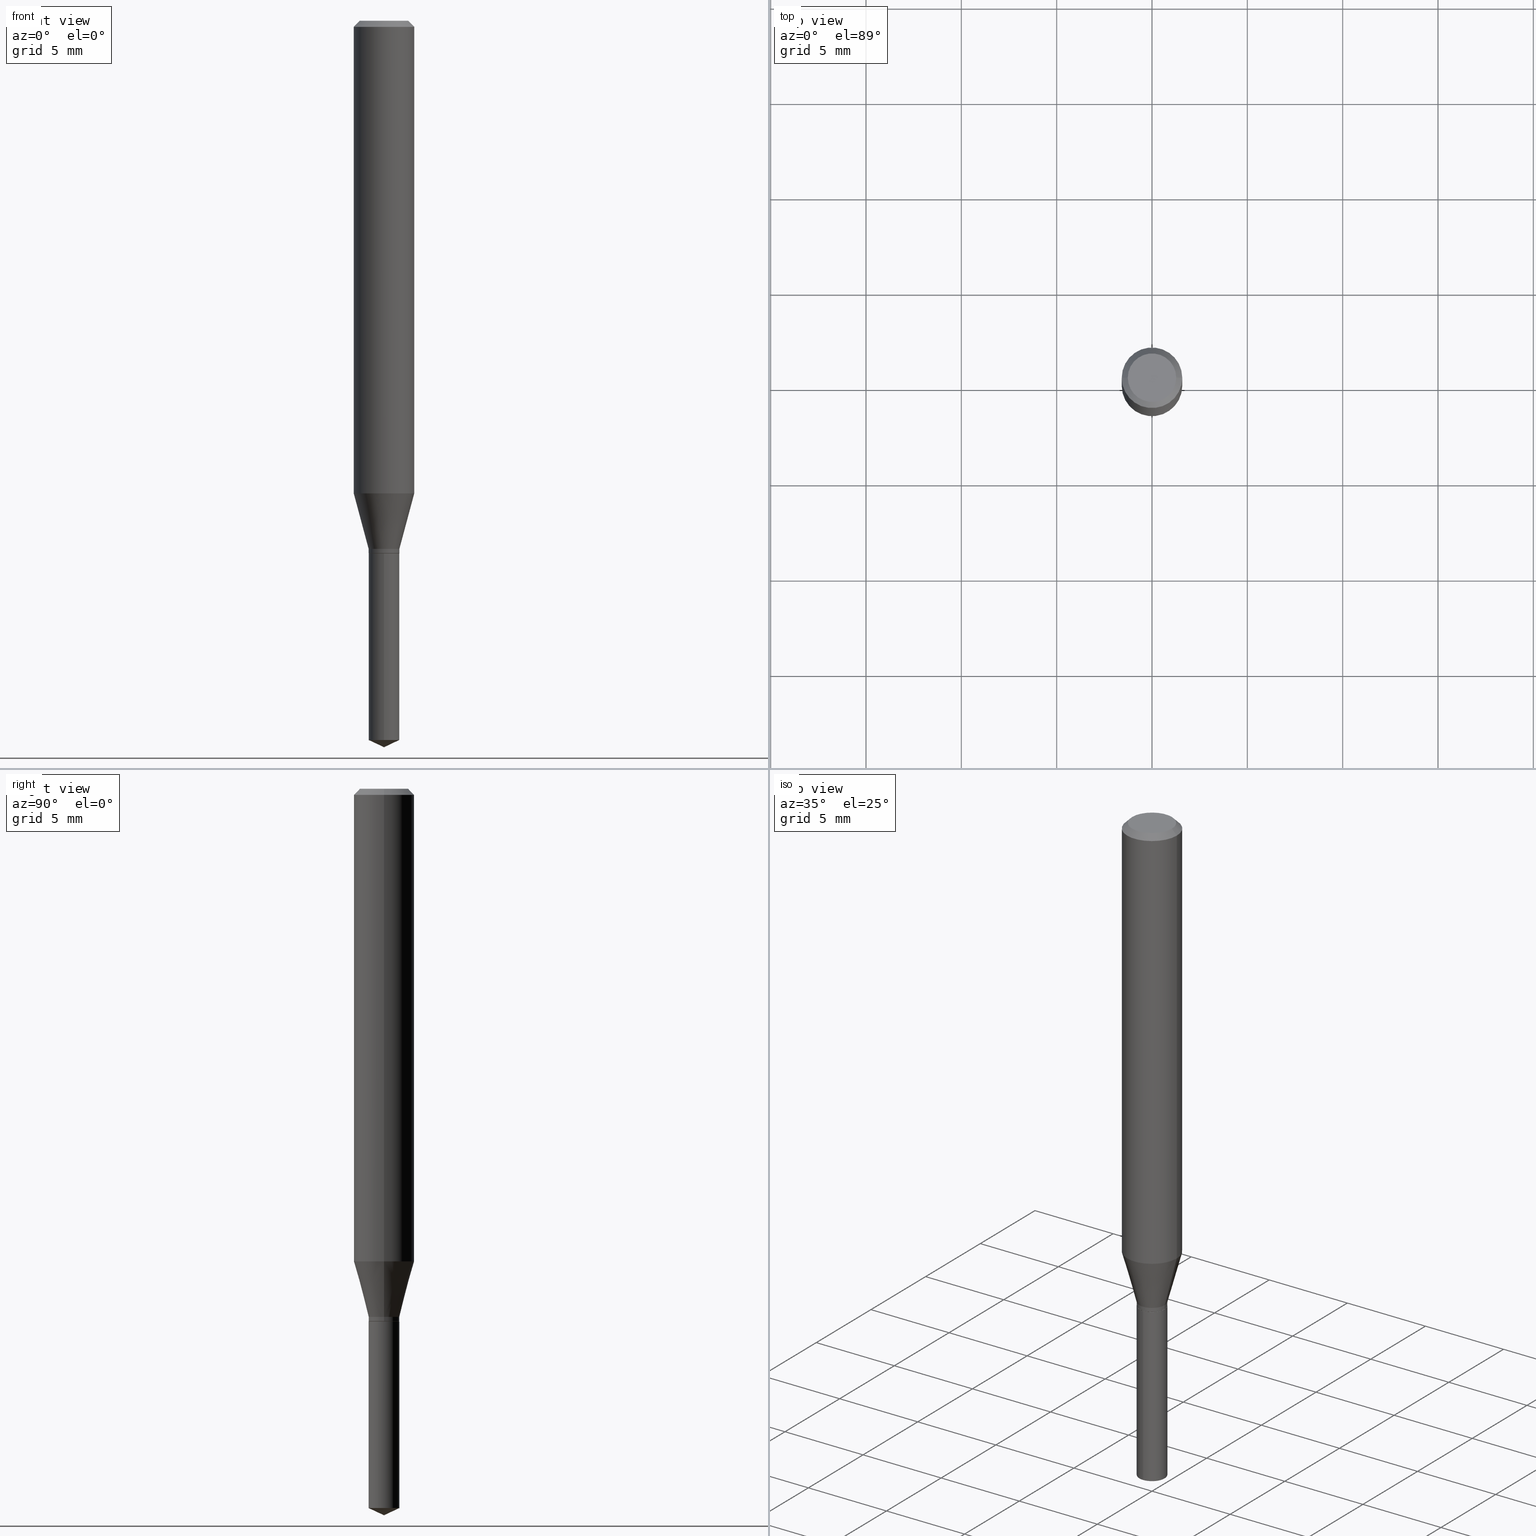
[diagram: canonical four-view strip — front | top / right | iso, engineering-drawing reading convention]
A machine part, canonical four-view strip (front | top / right | iso — engineering-drawing reading convention). The complete STEP part file that produces these views, byte-faithful:
ISO-10303-21;
HEADER;
FILE_DESCRIPTION (( 'STEP AP203' ),
    '1' );
FILE_NAME ('07343.STEP',
    '2024-04-23T20:35:52',
    ( '' ),
    ( '' ),
    'SwSTEP 2.0',
    'SolidWorks 2023',
    '' );
FILE_SCHEMA (( 'CONFIG_CONTROL_DESIGN' ));
ENDSEC;

DATA;
#1 = CARTESIAN_POINT ( 'NONE',  ( 2.666783733144892185E-29, -3.807460400008450745E-15, -1.090500000000000247 ) ) ;
#2 = AXIS2_PLACEMENT_3D ( 'NONE', #113, #224, #79 ) ;
#3 = ADVANCED_FACE ( 'NONE', ( #139 ), #90, .T. ) ;
#4 = PLANE ( 'NONE',  #352 ) ;
#5 = EDGE_CURVE ( 'NONE', #490, #102, #42, .T. ) ;
#6 = CIRCLE ( 'NONE', #284, 0.03175000000000000044 ) ;
#7 = VECTOR ( 'NONE', #11, 39.37007874015748854 ) ;
#8 = DIRECTION ( 'NONE',  ( -2.445399690415121810E-29, 3.491580316559632610E-15, 1.000000000000000000 ) ) ;
#9 = LOCAL_TIME ( 16, 35, 52.00000000000000000, #86 ) ;
#10 = CC_DESIGN_DATE_AND_TIME_ASSIGNMENT ( #408, #298, ( #413 ) ) ;
#11 = DIRECTION ( 'NONE',  ( -0.7071067811865232589, 7.493145998870265808E-15, 0.7071067811865715536 ) ) ;
#12 = ORIENTED_EDGE ( 'NONE', *, *, #156, .T. ) ;
#13 =( LENGTH_UNIT ( ) NAMED_UNIT ( * ) SI_UNIT ( $, .METRE. ) );
#14 = EDGE_LOOP ( 'NONE', ( #49, #384, #242, #141 ) ) ;
#15 = EDGE_CURVE ( 'NONE', #95, #51, #332, .T. ) ;
#16 = EDGE_LOOP ( 'NONE', ( #45, #245 ) ) ;
#17 = ORIENTED_EDGE ( 'NONE', *, *, #320, .T. ) ;
#18 = EDGE_CURVE ( 'NONE', #63, #386, #438, .T. ) ;
#19 = CLOSED_SHELL ( 'NONE', ( #59, #64, #216, #21, #210 ) ) ;
#20 = ORIENTED_EDGE ( 'NONE', *, *, #410, .T. ) ;
#21 = ADVANCED_FACE ( 'NONE', ( #297 ), #323, .T. ) ;
#22 = DIRECTION ( 'NONE',  ( -2.445468806185136597E-29, 3.491481338843145583E-15, 1.000000000000000000 ) ) ;
#23 = CARTESIAN_POINT ( 'NONE',  ( 3.668252923656895710E-29, -5.237152723863177100E-15, -1.500000000000000222 ) ) ;
#24 = AXIS2_PLACEMENT_3D ( 'NONE', #275, #178, #364 ) ;
#25 = LOCAL_TIME ( 16, 35, 52.00000000000000000, #31 ) ;
#26 = CARTESIAN_POINT ( 'NONE',  ( 0.03125000000000000000, -4.058847056405155936E-15, -1.100000000000000089 ) ) ;
#27 = CYLINDRICAL_SURFACE ( 'NONE', #166, 0.06250000000000005551 ) ;
#28 = ADVANCED_FACE ( 'NONE', ( #478 ), #269, .T. ) ;
#29 = CARTESIAN_POINT ( 'NONE',  ( -0.03175000000000000044, -3.597574747429412859E-15, -1.099499999999999922 ) ) ;
#30 = DIRECTION ( 'NONE',  ( -2.445468806185136597E-29, 3.491481338843145583E-15, 1.000000000000000000 ) ) ;
#31 = COORDINATED_UNIVERSAL_TIME_OFFSET ( 5, 0, .BEHIND. ) ;
#32 = EDGE_CURVE ( 'NONE', #286, #319, #111, .T. ) ;
#33 = CARTESIAN_POINT ( 'NONE',  ( 2.690015686803650369E-29, -3.840629472727460101E-15, -1.100000000000000089 ) ) ;
#34 = CIRCLE ( 'NONE', #313, 0.03175000000000000044 ) ;
#35 = CARTESIAN_POINT ( 'NONE',  ( 0.000000000000000000, 0.000000000000000000, 0.000000000000000000 ) ) ;
#36 = DIMENSIONAL_EXPONENTS ( 1.000000000000000000, 0.000000000000000000, 0.000000000000000000, 0.000000000000000000, 0.000000000000000000, 0.000000000000000000, 0.000000000000000000 ) ;
#37 = CC_DESIGN_APPROVAL ( #424, ( #371 ) ) ;
#38 = CARTESIAN_POINT ( 'NONE',  ( -0.03175000000000000044, -3.581863081404619327E-15, -1.090500000000000247 ) ) ;
#39 = SECURITY_CLASSIFICATION_LEVEL ( 'unclassified' ) ;
#40 = LINE ( 'NONE', #416, #232 ) ;
#41 = EDGE_LOOP ( 'NONE', ( #432, #172, #243 ) ) ;
#42 = CIRCLE ( 'NONE', #70, 0.03125000000000000000 ) ;
#43 = PERSON_AND_ORGANIZATION ( #468, #340 ) ;
#44 = LINE ( 'NONE', #268, #149 ) ;
#45 = ORIENTED_EDGE ( 'NONE', *, *, #5, .F. ) ;
#46 = AXIS2_PLACEMENT_3D ( 'NONE', #418, #303, #195 ) ;
#47 = CC_DESIGN_SECURITY_CLASSIFICATION ( #399, ( #371 ) ) ;
#48 = CARTESIAN_POINT ( 'NONE',  ( 3.056836007731442729E-31, -4.364351673553962300E-17, -0.01250000000000008916 ) ) ;
#49 = ORIENTED_EDGE ( 'NONE', *, *, #396, .F. ) ;
#50 = DIRECTION ( 'NONE',  ( 1.000000000000000000, -6.982962677686264344E-15, 0.000000000000000000 ) ) ;
#51 = VERTEX_POINT ( 'NONE', #405 ) ;
#52 = FACE_OUTER_BOUND ( 'NONE', #431, .T. ) ;
#53 =( GEOMETRIC_REPRESENTATION_CONTEXT ( 3 ) GLOBAL_UNCERTAINTY_ASSIGNED_CONTEXT ( ( #138 ) ) GLOBAL_UNIT_ASSIGNED_CONTEXT ( ( #389, #328, #446 ) ) REPRESENTATION_CONTEXT ( 'NONE', 'WORKASPACE' ) );
#54 = LOCAL_TIME ( 16, 35, 52.00000000000000000, #331 ) ;
#55 = CARTESIAN_POINT ( 'NONE',  ( 0.03175000000000000044, -4.029169465024989587E-15, -1.090500000000000247 ) ) ;
#56 = ORIENTED_EDGE ( 'NONE', *, *, #363, .T. ) ;
#57 = DIRECTION ( 'NONE',  ( 1.000000000000000000, -6.982962677686264344E-15, 0.000000000000000000 ) ) ;
#58 = ORIENTED_EDGE ( 'NONE', *, *, #410, .F. ) ;
#59 = ADVANCED_FACE ( 'NONE', ( #143 ), #482, .T. ) ;
#60 = VECTOR ( 'NONE', #477, 39.37007874015748143 ) ;
#61 = EDGE_LOOP ( 'NONE', ( #301, #104, #426, #337 ) ) ;
#62 = CIRCLE ( 'NONE', #398, 0.03175000000000000044 ) ;
#63 = VERTEX_POINT ( 'NONE', #155 ) ;
#64 = ADVANCED_FACE ( 'NONE', ( #76 ), #470, .T. ) ;
#65 = ADVANCED_FACE ( 'NONE', ( #447 ), #27, .T. ) ;
#66 = ORIENTED_EDGE ( 'NONE', *, *, #317, .F. ) ;
#67 = CARTESIAN_POINT ( 'NONE',  ( 2.666783733144892185E-29, -3.807460400008450745E-15, -1.090500000000000247 ) ) ;
#68 = ADVANCED_FACE ( 'NONE', ( #148 ), #215, .T. ) ;
#69 = DIRECTION ( 'NONE',  ( -2.445399690415121530E-29, 3.491580316559632610E-15, 1.000000000000000000 ) ) ;
#70 = AXIS2_PLACEMENT_3D ( 'NONE', #288, #260, #325 ) ;
#71 = CARTESIAN_POINT ( 'NONE',  ( 0.03175000000000000044, -4.029169465024989587E-15, -1.090500000000000247 ) ) ;
#72 = DIRECTION ( 'NONE',  ( -6.982962677686265922E-15, -1.000000000000000000, 4.302122824668131015E-15 ) ) ;
#73 = VECTOR ( 'NONE', #217, 39.37007874015748854 ) ;
#74 = LOCAL_TIME ( 16, 35, 52.00000000000000000, #486 ) ;
#75 = FACE_OUTER_BOUND ( 'NONE', #274, .T. ) ;
#76 = FACE_OUTER_BOUND ( 'NONE', #109, .T. ) ;
#77 = CC_DESIGN_PERSON_AND_ORGANIZATION_ASSIGNMENT ( #120, #265, ( #399 ) ) ;
#78 = PERSON_AND_ORGANIZATION_ROLE ( 'creator' ) ;
#79 = DIRECTION ( 'NONE',  ( 1.000000000000000000, -6.982962677686266711E-15, 4.876176775795936353E-29 ) ) ;
#80 = AXIS2_PLACEMENT_3D ( 'NONE', #257, #442, #407 ) ;
#81 = PERSON_AND_ORGANIZATION ( #468, #340 ) ;
#82 = DIRECTION ( 'NONE',  ( -6.982962677686265922E-15, -1.000000000000000000, 4.302122824668131015E-15 ) ) ;
#83 = VECTOR ( 'NONE', #110, 39.37007874015748143 ) ;
#84 = APPROVAL_STATUS ( 'not_yet_approved' ) ;
#85 = FACE_OUTER_BOUND ( 'NONE', #41, .T. ) ;
#86 = COORDINATED_UNIVERSAL_TIME_OFFSET ( 5, 0, .BEHIND. ) ;
#87 = FACE_OUTER_BOUND ( 'NONE', #212, .T. ) ;
#88 = VECTOR ( 'NONE', #411, 39.37007874015748143 ) ;
#89 = APPROVAL_DATE_TIME ( #366, #333 ) ;
#90 = CONICAL_SURFACE ( 'NONE', #290, 0.03125000000000000000, 0.7853981633974141952 ) ;
#91 = DIRECTION ( 'NONE',  ( 1.000000000000000000, -6.982962677686264344E-15, 0.000000000000000000 ) ) ;
#92 = EDGE_CURVE ( 'NONE', #357, #435, #281, .T. ) ;
#93 = AXIS2_PLACEMENT_3D ( 'NONE', #387, #200, #162 ) ;
#94 = DIRECTION ( 'NONE',  ( -2.445468806185136877E-29, 3.491481338843145188E-15, 1.000000000000000000 ) ) ;
#95 = VERTEX_POINT ( 'NONE', #221 ) ;
#96 = CARTESIAN_POINT ( 'NONE',  ( 0.03125000000000000000, -4.058847056405155936E-15, -1.100000000000000089 ) ) ;
#97 = CARTESIAN_POINT ( 'NONE',  ( 2.666783733144892185E-29, -3.807460400008450745E-15, -1.090500000000000247 ) ) ;
#98 = CIRCLE ( 'NONE', #354, 0.06250000000000012490 ) ;
#99 = AXIS2_PLACEMENT_3D ( 'NONE', #35, #194, #196 ) ;
#100 = CARTESIAN_POINT ( 'NONE',  ( 2.690015686803650369E-29, -3.840629472727460101E-15, -1.100000000000000089 ) ) ;
#101 = EDGE_CURVE ( 'NONE', #467, #430, #192, .T. ) ;
#102 = VERTEX_POINT ( 'NONE', #365 ) ;
#103 = EDGE_LOOP ( 'NONE', ( #66, #12, #176, #58 ) ) ;
#104 = ORIENTED_EDGE ( 'NONE', *, *, #458, .F. ) ;
#105 = CONICAL_SURFACE ( 'NONE', #391, 0.06250000000000000000, 0.7853981633974449483 ) ;
#106 = EDGE_LOOP ( 'NONE', ( #279, #351, #179, #355 ) ) ;
#107 = EDGE_CURVE ( 'NONE', #435, #124, #187, .T. ) ;
#108 = DIRECTION ( 'NONE',  ( -2.445468806185136877E-29, 3.491481338843145188E-15, 1.000000000000000000 ) ) ;
#109 = EDGE_LOOP ( 'NONE', ( #173, #209, #395 ) ) ;
#110 = DIRECTION ( 'NONE',  ( -2.445468806185136877E-29, 3.491481338843145188E-15, 1.000000000000000000 ) ) ;
#111 = LINE ( 'NONE', #367, #60 ) ;
#112 = LENGTH_MEASURE_WITH_UNIT ( LENGTH_MEASURE( 0.02539999999999999897 ), #13 );
#113 = CARTESIAN_POINT ( 'NONE',  ( 0.000000000000000000, 0.000000000000000000, 0.000000000000000000 ) ) ;
#114 = CIRCLE ( 'NONE', #127, 0.03175000000000000044 ) ;
#115 = DIRECTION ( 'NONE',  ( -0.2588190451025211281, 5.211531920934547886E-15, 0.9659258262890679791 ) ) ;
#116 = CARTESIAN_POINT ( 'NONE',  ( 0.06250000000000000000, -4.724246415962603826E-16, -0.01250000000000008916 ) ) ;
#117 = PERSON_AND_ORGANIZATION_ROLE ( 'creator' ) ;
#118 = CARTESIAN_POINT ( 'NONE',  ( 0.000000000000000000, 0.000000000000000000, 0.000000000000000000 ) ) ;
#119 = APPROVAL_PERSON_ORGANIZATION ( #415, #451, #157 ) ;
#120 = PERSON_AND_ORGANIZATION ( #468, #340 ) ;
#121 = CARTESIAN_POINT ( 'NONE',  ( 2.690015686803650369E-29, -3.840629472727460101E-15, -1.100000000000000089 ) ) ;
#122 = PERSON_AND_ORGANIZATION_ROLE ( 'design_supplier' ) ;
#123 = FACE_OUTER_BOUND ( 'NONE', #282, .T. ) ;
#124 = VERTEX_POINT ( 'NONE', #402 ) ;
#125 = CARTESIAN_POINT ( 'NONE',  ( 3.056836007731442729E-31, -4.364351673553962300E-17, -0.01250000000000008916 ) ) ;
#126 = EDGE_CURVE ( 'NONE', #63, #286, #359, .T. ) ;
#127 = AXIS2_PLACEMENT_3D ( 'NONE', #305, #452, #91 ) ;
#128 = CARTESIAN_POINT ( 'NONE',  ( 0.06250000000000012490, -3.843211205543924490E-15, -0.9757394376672569036 ) ) ;
#129 = ORIENTED_EDGE ( 'NONE', *, *, #304, .F. ) ;
#130 = ORIENTED_EDGE ( 'NONE', *, *, #461, .F. ) ;
#131 = CC_DESIGN_PERSON_AND_ORGANIZATION_ASSIGNMENT ( #81, #412, ( #259 ) ) ;
#132 = VECTOR ( 'NONE', #115, 39.37007874015748854 ) ;
#133 = CARTESIAN_POINT ( 'NONE',  ( 0.000000000000000000, 0.000000000000000000, 0.000000000000000000 ) ) ;
#134 = ORIENTED_EDGE ( 'NONE', *, *, #317, .T. ) ;
#135 = CIRCLE ( 'NONE', #382, 0.04999999999999999584 ) ;
#136 = ORIENTED_EDGE ( 'NONE', *, *, #396, .T. ) ;
#137 = ORIENTED_EDGE ( 'NONE', *, *, #174, .T. ) ;
#138 = UNCERTAINTY_MEASURE_WITH_UNIT (LENGTH_MEASURE( 1.000000000000000082E-05 ), #389, 'distance_accuracy_value', 'NONE');
#139 = FACE_OUTER_BOUND ( 'NONE', #14, .T. ) ;
#140 = LINE ( 'NONE', #434, #7 ) ;
#141 = ORIENTED_EDGE ( 'NONE', *, *, #156, .F. ) ;
#142 = CARTESIAN_POINT ( 'NONE',  ( 3.893286209682126177E-47, -5.558580879666067980E-33, -1.592040838891559689E-18 ) ) ;
#143 = FACE_OUTER_BOUND ( 'NONE', #472, .T. ) ;
#144 = CARTESIAN_POINT ( 'NONE',  ( 0.03175000000000000044, -4.060592797074577440E-15, -1.099499999999999922 ) ) ;
#145 = EDGE_CURVE ( 'NONE', #51, #430, #251, .T. ) ;
#146 = CARTESIAN_POINT ( 'NONE',  ( 2.690015686803650369E-29, -3.840629472727460101E-15, -1.100000000000000089 ) ) ;
#147 = CALENDAR_DATE ( 2024, 23, 4 ) ;
#148 = FACE_OUTER_BOUND ( 'NONE', #213, .T. ) ;
#149 = VECTOR ( 'NONE', #94, 39.37007874015748143 ) ;
#150 = MECHANICAL_CONTEXT ( 'NONE', #181, 'mechanical' ) ;
#151 = EDGE_CURVE ( 'NONE', #230, #124, #98, .T. ) ;
#152 = CARTESIAN_POINT ( 'NONE',  ( 2.386140357779903165E-29, -3.406776038188532032E-15, -0.9757394376672569036 ) ) ;
#153 = EDGE_CURVE ( 'NONE', #490, #463, #385, .T. ) ;
#154 = COORDINATED_UNIVERSAL_TIME_OFFSET ( 5, 0, .BEHIND. ) ;
#155 = CARTESIAN_POINT ( 'NONE',  ( 3.668099535622682715E-29, -5.237370474839449507E-15, -1.500000000000000222 ) ) ;
#156 = EDGE_CURVE ( 'NONE', #429, #463, #114, .T. ) ;
#157 = APPROVAL_ROLE ( '' ) ;
#158 = DIRECTION ( 'NONE',  ( 1.000000000000000000, -6.982962677686266711E-15, 0.000000000000000000 ) ) ;
#159 = ORIENTED_EDGE ( 'NONE', *, *, #107, .T. ) ;
#160 = CONICAL_SURFACE ( 'NONE', #292, 0.06250000000000000000, 0.7853981633974449483 ) ;
#161 = CALENDAR_DATE ( 2024, 23, 4 ) ;
#162 = DIRECTION ( 'NONE',  ( 1.000000000000000000, -6.982962677686262766E-15, 0.000000000000000000 ) ) ;
#163 = ORIENTED_EDGE ( 'NONE', *, *, #174, .F. ) ;
#164 = ADVANCED_FACE ( 'NONE', ( #201 ), #105, .T. ) ;
#165 = DIRECTION ( 'NONE',  ( -2.445468806185136877E-29, 3.491481338843145188E-15, 1.000000000000000000 ) ) ;
#166 = AXIS2_PLACEMENT_3D ( 'NONE', #249, #185, #409 ) ;
#167 = DIRECTION ( 'NONE',  ( 6.982962677686265922E-15, 1.000000000000000000, -3.491580316559632610E-15 ) ) ;
#168 = CONICAL_SURFACE ( 'NONE', #428, 0.03175000000000000044, 0.2617993877991498519 ) ;
#169 = DIRECTION ( 'NONE',  ( 2.438088387897960049E-29, -3.491481338843145188E-15, -1.000000000000000000 ) ) ;
#170 = EDGE_CURVE ( 'NONE', #102, #490, #175, .T. ) ;
#171 = DIRECTION ( 'NONE',  ( -2.445468806185136597E-29, 3.491481338843145583E-15, 1.000000000000000000 ) ) ;
#172 = ORIENTED_EDGE ( 'NONE', *, *, #18, .T. ) ;
#173 = ORIENTED_EDGE ( 'NONE', *, *, #18, .F. ) ;
#174 = EDGE_CURVE ( 'NONE', #463, #429, #256, .T. ) ;
#175 = CIRCLE ( 'NONE', #93, 0.03125000000000000000 ) ;
#176 = ORIENTED_EDGE ( 'NONE', *, *, #457, .T. ) ;
#177 = ORIENTED_EDGE ( 'NONE', *, *, #363, .F. ) ;
#178 = DIRECTION ( 'NONE',  ( -2.445399690415121530E-29, 3.491580316559632610E-15, 1.000000000000000000 ) ) ;
#179 = ORIENTED_EDGE ( 'NONE', *, *, #304, .T. ) ;
#180 = DIRECTION ( 'NONE',  ( -6.982962677686265922E-15, -1.000000000000000000, 0.000000000000000000 ) ) ;
#181 = APPLICATION_CONTEXT ( 'configuration controlled 3d designs of mechanical parts and assemblies' ) ;
#182 = AXIS2_PLACEMENT_3D ( 'NONE', #118, #263, #227 ) ;
#183 = DIRECTION ( 'NONE',  ( 1.000000000000000000, -6.982962677686262766E-15, 0.000000000000000000 ) ) ;
#184 = CARTESIAN_POINT ( 'NONE',  ( 0.03175000000000000044, -2.217090650165389651E-16, 1.548186126315209838E-30 ) ) ;
#185 = DIRECTION ( 'NONE',  ( -2.445468806185136597E-29, 3.491481338843145583E-15, 1.000000000000000000 ) ) ;
#186 = CARTESIAN_POINT ( 'NONE',  ( 3.631970764827928095E-29, -5.185567816509882109E-15, -1.485194731853578975 ) ) ;
#187 = LINE ( 'NONE', #38, #132 ) ;
#188 = CARTESIAN_POINT ( 'NONE',  ( 3.056836007731442729E-31, -4.364351673553962300E-17, -0.01250000000000008916 ) ) ;
#189 = CIRCLE ( 'NONE', #225, 0.03175000000000000044 ) ;
#190 = CC_DESIGN_APPROVAL ( #333, ( #399 ) ) ;
#191 = APPLICATION_PROTOCOL_DEFINITION ( 'international standard', 'config_control_design', 1994, #207 ) ;
#192 = LINE ( 'NONE', #219, #203 ) ;
#193 = ADVANCED_FACE ( 'NONE', ( #336 ), #4, .F. ) ;
#194 = DIRECTION ( 'NONE',  ( 0.000000000000000000, 0.000000000000000000, 1.000000000000000000 ) ) ;
#195 = DIRECTION ( 'NONE',  ( -6.982962677686266711E-15, -1.000000000000000000, 3.520397390770453475E-15 ) ) ;
#196 = DIRECTION ( 'NONE',  ( 1.000000000000000000, 0.000000000000000000, 0.000000000000000000 ) ) ;
#197 = FACE_OUTER_BOUND ( 'NONE', #16, .T. ) ;
#198 = LOCAL_TIME ( 16, 35, 52.00000000000000000, #154 ) ;
#199 = APPROVAL_PERSON_ORGANIZATION ( #43, #333, #338 ) ;
#200 = DIRECTION ( 'NONE',  ( -2.445468806185136597E-29, 3.491481338843145583E-15, 1.000000000000000000 ) ) ;
#201 = FACE_OUTER_BOUND ( 'NONE', #342, .T. ) ;
#202 = ORIENTED_EDGE ( 'NONE', *, *, #372, .T. ) ;
#203 = VECTOR ( 'NONE', #373, 39.37007874015748143 ) ;
#204 = EDGE_CURVE ( 'NONE', #430, #51, #406, .T. ) ;
#205 = DIRECTION ( 'NONE',  ( -2.445468806185136597E-29, 3.491481338843145583E-15, 1.000000000000000000 ) ) ;
#206 = FACE_OUTER_BOUND ( 'NONE', #103, .T. ) ;
#207 = APPLICATION_CONTEXT ( 'configuration controlled 3d designs of mechanical parts and assemblies' ) ;
#208 = ORIENTED_EDGE ( 'NONE', *, *, #356, .F. ) ;
#209 = ORIENTED_EDGE ( 'NONE', *, *, #126, .T. ) ;
#210 = ADVANCED_FACE ( 'NONE', ( #123 ), #420, .F. ) ;
#211 = ORIENTED_EDGE ( 'NONE', *, *, #423, .F. ) ;
#212 = EDGE_LOOP ( 'NONE', ( #392, #380, #280, #449 ) ) ;
#213 = EDGE_LOOP ( 'NONE', ( #137, #134, #234, #271 ) ) ;
#214 = DIRECTION ( 'NONE',  ( 1.000000000000000000, -6.982962677686264344E-15, 0.000000000000000000 ) ) ;
#215 = CYLINDRICAL_SURFACE ( 'NONE', #2, 0.03175000000000000044 ) ;
#216 = ADVANCED_FACE ( 'NONE', ( #85 ), #370, .T. ) ;
#217 = DIRECTION ( 'NONE',  ( 0.2588190451025211281, 1.565188264969622954E-15, 0.9659258262890679791 ) ) ;
#218 = CARTESIAN_POINT ( 'NONE',  ( -9.260740279983036507E-28, 1.322265303911854087E-13, 37.87007874015748143 ) ) ;
#219 = CARTESIAN_POINT ( 'NONE',  ( -0.06250000000000000000, 3.927916506198520587E-16, -0.01250000000000008916 ) ) ;
#220 = DATE_AND_TIME ( #161, #9 ) ;
#221 = CARTESIAN_POINT ( 'NONE',  ( 0.04999999999999999584, -4.077247707424184705E-16, -1.592040838888913461E-18 ) ) ;
#222 = PERSON_AND_ORGANIZATION ( #468, #340 ) ;
#223 = AXIS2_PLACEMENT_3D ( 'NONE', #250, #22, #324 ) ;
#224 = DIRECTION ( 'NONE',  ( -2.445468806185136597E-29, 3.491481338843145583E-15, 1.000000000000000000 ) ) ;
#225 = AXIS2_PLACEMENT_3D ( 'NONE', #97, #171, #322 ) ;
#226 = PERSON_AND_ORGANIZATION ( #468, #340 ) ;
#227 = DIRECTION ( 'NONE',  ( 1.000000000000000000, -6.982962677686267499E-15, 4.876176775795936353E-29 ) ) ;
#228 = APPLICATION_PROTOCOL_DEFINITION ( 'international standard', 'config_control_design', 1994, #181 ) ;
#229 = DIRECTION ( 'NONE',  ( -2.445468806185136597E-29, 3.491481338843145583E-15, 1.000000000000000000 ) ) ;
#230 = VERTEX_POINT ( 'NONE', #128 ) ;
#231 = DIRECTION ( 'NONE',  ( -1.000000000000000000, 6.982962677686266711E-15, 0.000000000000000000 ) ) ;
#232 = VECTOR ( 'NONE', #165, 39.37007874015748143 ) ;
#233 = DIRECTION ( 'NONE',  ( -2.438088387897960049E-29, 3.491481338843145188E-15, 1.000000000000000000 ) ) ;
#234 = ORIENTED_EDGE ( 'NONE', *, *, #92, .F. ) ;
#235 = DIRECTION ( 'NONE',  ( 2.445399690415121250E-29, -3.491580316559632610E-15, -1.000000000000000000 ) ) ;
#236 = ORIENTED_EDGE ( 'NONE', *, *, #153, .F. ) ;
#237 = ADVANCED_FACE ( 'NONE', ( #52 ), #440, .T. ) ;
#238 = LINE ( 'NONE', #401, #83 ) ;
#239 = ORIENTED_EDGE ( 'NONE', *, *, #474, .T. ) ;
#240 = AXIS2_PLACEMENT_3D ( 'NONE', #125, #309, #158 ) ;
#241 = DIRECTION ( 'NONE',  ( -6.982962677686265922E-15, -1.000000000000000000, 4.302122824668131015E-15 ) ) ;
#242 = ORIENTED_EDGE ( 'NONE', *, *, #153, .T. ) ;
#243 = ORIENTED_EDGE ( 'NONE', *, *, #369, .F. ) ;
#244 = AXIS2_PLACEMENT_3D ( 'NONE', #476, #258, #82 ) ;
#245 = ORIENTED_EDGE ( 'NONE', *, *, #170, .F. ) ;
#246 = AXIS2_PLACEMENT_3D ( 'NONE', #310, #462, #214 ) ;
#247 = ORIENTED_EDGE ( 'NONE', *, *, #32, .T. ) ;
#248 = DIRECTION ( 'NONE',  ( 1.000000000000000000, -6.982962677686265922E-15, 4.875957971899673662E-29 ) ) ;
#249 = CARTESIAN_POINT ( 'NONE',  ( 0.000000000000000000, 0.000000000000000000, 0.000000000000000000 ) ) ;
#250 = CARTESIAN_POINT ( 'NONE',  ( 3.893286209682126177E-47, -5.558580879666067980E-33, -1.592040838891559689E-18 ) ) ;
#251 = CIRCLE ( 'NONE', #388, 0.06250000000000000000 ) ;
#252 = VECTOR ( 'NONE', #456, 39.37007874015748854 ) ;
#253 = DIRECTION ( 'NONE',  ( -2.445399690415121530E-29, 3.491580316559632610E-15, 1.000000000000000000 ) ) ;
#254 = DIRECTION ( 'NONE',  ( 1.000000000000000000, -6.982962677686265922E-15, 4.876176775795935793E-29 ) ) ;
#255 = MANIFOLD_SOLID_BREP ( 'Body-Move/Copy2[1]', #19 ) ;
#256 = CIRCLE ( 'NONE', #433, 0.03175000000000000044 ) ;
#257 = CARTESIAN_POINT ( 'NONE',  ( 2.666783733144892185E-29, -3.807460400008450745E-15, -1.090500000000000247 ) ) ;
#258 = DIRECTION ( 'NONE',  ( -2.445399690415121530E-29, 3.491580316559632610E-15, 1.000000000000000000 ) ) ;
#259 = PRODUCT ( '07343', '07343', '', ( #150 ) ) ;
#260 = DIRECTION ( 'NONE',  ( -2.445468806185136597E-29, 3.491481338843145583E-15, 1.000000000000000000 ) ) ;
#261 = MANIFOLD_SOLID_BREP ( 'Body-Move/Copy2[2]', #335 ) ;
#262 = APPROVAL_DATE_TIME ( #483, #424 ) ;
#263 = DIRECTION ( 'NONE',  ( -2.445468806185136597E-29, 3.491481338843145583E-15, 1.000000000000000000 ) ) ;
#264 = APPROVAL_PERSON_ORGANIZATION ( #222, #424, #368 ) ;
#265 = PERSON_AND_ORGANIZATION_ROLE ( 'classification_officer' ) ;
#266 = DIRECTION ( 'NONE',  ( 1.000000000000000000, -6.982962677686264344E-15, 0.000000000000000000 ) ) ;
#267 = APPROVAL_STATUS ( 'not_yet_approved' ) ;
#268 = CARTESIAN_POINT ( 'NONE',  ( -0.06250000000000005551, 4.440892098500630106E-16, -3.074334431409318916E-30 ) ) ;
#269 = CONICAL_SURFACE ( 'NONE', #453, 0.03125000000000000000, 0.7853981633974141952 ) ;
#270 = DIRECTION ( 'NONE',  ( -2.445468806185136597E-29, 3.491481338843145583E-15, 1.000000000000000000 ) ) ;
#271 = ORIENTED_EDGE ( 'NONE', *, *, #457, .F. ) ;
#272 = CIRCLE ( 'NONE', #24, 0.03175000000000000044 ) ;
#273 = DIRECTION ( 'NONE',  ( 2.445468806185136597E-29, -3.491481338843145583E-15, -1.000000000000000000 ) ) ;
#274 = EDGE_LOOP ( 'NONE', ( #306, #20, #239, #208 ) ) ;
#275 = CARTESIAN_POINT ( 'NONE',  ( 2.690015686803650369E-29, -3.840629472727460101E-15, -1.100000000000000089 ) ) ;
#276 = AXIS2_PLACEMENT_3D ( 'NONE', #218, #69, #362 ) ;
#277 = CARTESIAN_POINT ( 'NONE',  ( -0.06250000000000000000, -1.281120567611971997E-15, -0.01250000000000008916 ) ) ;
#278 = ORIENTED_EDGE ( 'NONE', *, *, #474, .F. ) ;
#279 = ORIENTED_EDGE ( 'NONE', *, *, #32, .F. ) ;
#280 = ORIENTED_EDGE ( 'NONE', *, *, #461, .T. ) ;
#281 = CIRCLE ( 'NONE', #80, 0.03175000000000000044 ) ;
#282 = EDGE_LOOP ( 'NONE', ( #56, #350 ) ) ;
#283 = ADVANCED_FACE ( 'NONE', ( #345 ), #160, .T. ) ;
#284 = AXIS2_PLACEMENT_3D ( 'NONE', #100, #459, #241 ) ;
#285 = CARTESIAN_POINT ( 'NONE',  ( 3.631970764827928095E-29, -5.185567816509882109E-15, -1.485194731853578975 ) ) ;
#286 = VERTEX_POINT ( 'NONE', #484 ) ;
#287 = DIRECTION ( 'NONE',  ( -2.445468806185136597E-29, 3.491481338843145583E-15, 1.000000000000000000 ) ) ;
#288 = CARTESIAN_POINT ( 'NONE',  ( 2.690015686803650369E-29, -3.840629472727460101E-15, -1.100000000000000089 ) ) ;
#289 = LINE ( 'NONE', #184, #321 ) ;
#290 = AXIS2_PLACEMENT_3D ( 'NONE', #146, #444, #183 ) ;
#291 = CARTESIAN_POINT ( 'NONE',  ( 2.690015686803650369E-29, -3.840629472727460101E-15, -1.100000000000000089 ) ) ;
#292 = AXIS2_PLACEMENT_3D ( 'NONE', #48, #273, #231 ) ;
#293 = DIRECTION ( 'NONE',  ( 6.439704144417030353E-15, 0.9063077870366521571, 0.4226182617406946673 ) ) ;
#294 = DIRECTION ( 'NONE',  ( 1.000000000000000000, -6.982962677686262766E-15, 0.000000000000000000 ) ) ;
#295 = DATE_AND_TIME ( #147, #198 ) ;
#296 = AXIS2_PLACEMENT_3D ( 'NONE', #291, #253, #72 ) ;
#297 = FACE_OUTER_BOUND ( 'NONE', #106, .T. ) ;
#298 = DATE_TIME_ROLE ( 'creation_date' ) ;
#299 = CC_DESIGN_PERSON_AND_ORGANIZATION_ASSIGNMENT ( #226, #78, ( #371 ) ) ;
#300 = DIRECTION ( 'NONE',  ( 1.000000000000000000, -6.982962677686264344E-15, 0.000000000000000000 ) ) ;
#301 = ORIENTED_EDGE ( 'NONE', *, *, #15, .F. ) ;
#302 = CALENDAR_DATE ( 2024, 23, 4 ) ;
#303 = DIRECTION ( 'NONE',  ( -2.445399690415121530E-29, 3.491580316559632610E-15, 1.000000000000000000 ) ) ;
#304 = EDGE_CURVE ( 'NONE', #386, #485, #454, .T. ) ;
#305 = CARTESIAN_POINT ( 'NONE',  ( 2.688792952400557567E-29, -3.838883732058038598E-15, -1.099499999999999922 ) ) ;
#306 = ORIENTED_EDGE ( 'NONE', *, *, #107, .F. ) ;
#307 = DIRECTION ( 'NONE',  ( 2.445468806185136597E-29, -3.491481338843145583E-15, -1.000000000000000000 ) ) ;
#308 = VECTOR ( 'NONE', #8, 39.37007874015748143 ) ;
#309 = DIRECTION ( 'NONE',  ( -2.445468806185136597E-29, 3.491481338843145583E-15, 1.000000000000000000 ) ) ;
#310 = CARTESIAN_POINT ( 'NONE',  ( 2.386140357779903165E-29, -3.406776038188532032E-15, -0.9757394376672569036 ) ) ;
#311 = ORIENTED_EDGE ( 'NONE', *, *, #15, .T. ) ;
#312 = ORIENTED_EDGE ( 'NONE', *, *, #101, .F. ) ;
#313 = AXIS2_PLACEMENT_3D ( 'NONE', #186, #427, #436 ) ;
#314 = EDGE_LOOP ( 'NONE', ( #460, #17, #316, #130 ) ) ;
#315 = ADVANCED_FACE ( 'NONE', ( #87 ), #414, .T. ) ;
#316 = ORIENTED_EDGE ( 'NONE', *, *, #145, .F. ) ;
#317 = EDGE_CURVE ( 'NONE', #429, #435, #40, .T. ) ;
#318 = CARTESIAN_POINT ( 'NONE',  ( -2.217090650165026775E-16, -0.03175000000000519768, -1.485194731853578975 ) ) ;
#319 = VERTEX_POINT ( 'NONE', #379 ) ;
#320 = EDGE_CURVE ( 'NONE', #124, #430, #44, .T. ) ;
#321 = VECTOR ( 'NONE', #108, 39.37007874015748143 ) ;
#322 = DIRECTION ( 'NONE',  ( 1.000000000000000000, -6.982962677686264344E-15, 0.000000000000000000 ) ) ;
#323 = CYLINDRICAL_SURFACE ( 'NONE', #244, 0.03175000000000000044 ) ;
#324 = DIRECTION ( 'NONE',  ( 1.000000000000000000, -6.982962677686265922E-15, 4.875957971899673662E-29 ) ) ;
#325 = DIRECTION ( 'NONE',  ( 1.000000000000000000, -6.982962677686262766E-15, 0.000000000000000000 ) ) ;
#326 = CALENDAR_DATE ( 2024, 23, 4 ) ;
#327 = DIRECTION ( 'NONE',  ( -6.328713451373374901E-15, -0.9063077870366492705, 0.4226182617407009956 ) ) ;
#328 =( NAMED_UNIT ( * ) PLANE_ANGLE_UNIT ( ) SI_UNIT ( $, .RADIAN. ) );
#329 = DIRECTION ( 'NONE',  ( -2.445468806185136597E-29, 3.491481338843145583E-15, 1.000000000000000000 ) ) ;
#330 = ADVANCED_BREP_SHAPE_REPRESENTATION ( '07343', ( #255, #261, #99 ), #53 ) ;
#331 = COORDINATED_UNIVERSAL_TIME_OFFSET ( 5, 0, .BEHIND. ) ;
#332 = LINE ( 'NONE', #116, #88 ) ;
#333 = APPROVAL ( #267, 'UNSPECIFIED' ) ;
#334 = APPROVAL_DATE_TIME ( #295, #451 ) ;
#335 = CLOSED_SHELL ( 'NONE', ( #28, #164, #65, #237, #68, #390, #377, #315, #283, #193, #353, #3 ) ) ;
#336 = FACE_OUTER_BOUND ( 'NONE', #421, .T. ) ;
#337 = ORIENTED_EDGE ( 'NONE', *, *, #204, .T. ) ;
#338 = APPROVAL_ROLE ( '' ) ;
#339 = PRODUCT_DEFINITION_SHAPE ( 'NONE', 'NONE',  #413 ) ;
#340 = ORGANIZATION ( 'UNSPECIFIED', 'UNSPECIFIED', '' ) ;
#341 = PLANE ( 'NONE',  #419 ) ;
#342 = EDGE_LOOP ( 'NONE', ( #211, #311, #400, #312 ) ) ;
#343 = CARTESIAN_POINT ( 'NONE',  ( 3.056836007731442729E-31, -4.364351673553962300E-17, -0.01250000000000008916 ) ) ;
#344 = CARTESIAN_POINT ( 'NONE',  ( 2.688792952400557567E-29, -3.838883732058038598E-15, -1.099499999999999922 ) ) ;
#345 = FACE_OUTER_BOUND ( 'NONE', #61, .T. ) ;
#346 = EDGE_LOOP ( 'NONE', ( #469, #136, #163, #236 ) ) ;
#347 = DIRECTION ( 'NONE',  ( -2.445468806185136597E-29, 3.491481338843145583E-15, 1.000000000000000000 ) ) ;
#348 = ORIENTED_EDGE ( 'NONE', *, *, #423, .T. ) ;
#349 = DIRECTION ( 'NONE',  ( -2.445468806185136597E-29, 3.491481338843145583E-15, 1.000000000000000000 ) ) ;
#350 = ORIENTED_EDGE ( 'NONE', *, *, #445, .T. ) ;
#351 = ORIENTED_EDGE ( 'NONE', *, *, #369, .T. ) ;
#352 = AXIS2_PLACEMENT_3D ( 'NONE', #448, #169, #376 ) ;
#353 = ADVANCED_FACE ( 'NONE', ( #197 ), #341, .F. ) ;
#354 = AXIS2_PLACEMENT_3D ( 'NONE', #152, #270, #300 ) ;
#355 = ORIENTED_EDGE ( 'NONE', *, *, #445, .F. ) ;
#356 = EDGE_CURVE ( 'NONE', #124, #230, #360, .T. ) ;
#357 = VERTEX_POINT ( 'NONE', #55 ) ;
#358 = DIRECTION ( 'NONE',  ( -2.445399690415121530E-29, 3.491580316559632610E-15, 1.000000000000000000 ) ) ;
#359 = LINE ( 'NONE', #23, #403 ) ;
#360 = CIRCLE ( 'NONE', #246, 0.06250000000000012490 ) ;
#361 = CARTESIAN_POINT ( 'NONE',  ( -2.217090650165120452E-16, -0.03175000000000384459, -1.099999999999999867 ) ) ;
#362 = DIRECTION ( 'NONE',  ( -6.982962677686266711E-15, -1.000000000000000000, 3.520397390770453475E-15 ) ) ;
#363 = EDGE_CURVE ( 'NONE', #485, #319, #272, .T. ) ;
#364 = DIRECTION ( 'NONE',  ( -6.982962677686265922E-15, -1.000000000000000000, 4.302122824668131015E-15 ) ) ;
#365 = CARTESIAN_POINT ( 'NONE',  ( -0.03125000000000000000, -3.615935640628317592E-15, -1.100000000000000089 ) ) ;
#366 = DATE_AND_TIME ( #326, #74 ) ;
#367 = CARTESIAN_POINT ( 'NONE',  ( 2.255973186038586827E-16, 0.03174999999999615630, -1.100000000000000089 ) ) ;
#368 = APPROVAL_ROLE ( '' ) ;
#369 = EDGE_CURVE ( 'NONE', #286, #386, #34, .T. ) ;
#370 = CONICAL_SURFACE ( 'NONE', #46, 84.42940631927434936, 1.134464013796316006 ) ;
#371 = PRODUCT_DEFINITION_FORMATION_WITH_SPECIFIED_SOURCE ( 'ANY', '', #259, .NOT_KNOWN. ) ;
#372 = EDGE_CURVE ( 'NONE', #386, #286, #62, .T. ) ;
#373 = DIRECTION ( 'NONE',  ( -0.7071067811865451302, 2.468850131082231817E-15, -0.7071067811865499042 ) ) ;
#374 = DESIGN_CONTEXT ( 'detailed design', #207, 'design' ) ;
#375 = PERSON_AND_ORGANIZATION ( #468, #340 ) ;
#376 = DIRECTION ( 'NONE',  ( -1.000000000000000000, 6.982962677686265922E-15, -4.876176775795935793E-29 ) ) ;
#377 = ADVANCED_FACE ( 'NONE', ( #75 ), #168, .T. ) ;
#378 = DATE_TIME_ROLE ( 'classification_date' ) ;
#379 = CARTESIAN_POINT ( 'NONE',  ( 2.255973186038682477E-16, 0.03174999999999616324, -1.100000000000000089 ) ) ;
#380 = ORIENTED_EDGE ( 'NONE', *, *, #356, .T. ) ;
#381 = SHAPE_DEFINITION_REPRESENTATION ( #339, #330 ) ;
#382 = AXIS2_PLACEMENT_3D ( 'NONE', #142, #287, #248 ) ;
#383 = CARTESIAN_POINT ( 'NONE',  ( 2.690015686803650369E-29, -3.840629472727460101E-15, -1.100000000000000089 ) ) ;
#384 = ORIENTED_EDGE ( 'NONE', *, *, #170, .T. ) ;
#385 = LINE ( 'NONE', #96, #252 ) ;
#386 = VERTEX_POINT ( 'NONE', #318 ) ;
#387 = CARTESIAN_POINT ( 'NONE',  ( 2.690015686803650369E-29, -3.840629472727460101E-15, -1.100000000000000089 ) ) ;
#388 = AXIS2_PLACEMENT_3D ( 'NONE', #188, #329, #480 ) ;
#389 =( CONVERSION_BASED_UNIT ( 'INCH', #112 ) LENGTH_UNIT ( ) NAMED_UNIT ( #36 ) );
#390 = ADVANCED_FACE ( 'NONE', ( #206 ), #425, .T. ) ;
#391 = AXIS2_PLACEMENT_3D ( 'NONE', #343, #307, #489 ) ;
#392 = ORIENTED_EDGE ( 'NONE', *, *, #320, .F. ) ;
#393 = LINE ( 'NONE', #71, #73 ) ;
#394 = ORIENTED_EDGE ( 'NONE', *, *, #151, .F. ) ;
#395 = ORIENTED_EDGE ( 'NONE', *, *, #372, .F. ) ;
#396 = EDGE_CURVE ( 'NONE', #102, #429, #140, .T. ) ;
#397 = ORIENTED_EDGE ( 'NONE', *, *, #92, .T. ) ;
#398 = AXIS2_PLACEMENT_3D ( 'NONE', #285, #358, #180 ) ;
#399 = SECURITY_CLASSIFICATION ( '', '', #39 ) ;
#400 = ORIENTED_EDGE ( 'NONE', *, *, #145, .T. ) ;
#401 = CARTESIAN_POINT ( 'NONE',  ( 0.06250000000000005551, -4.364351673553921131E-16, 3.047610484872463023E-30 ) ) ;
#402 = CARTESIAN_POINT ( 'NONE',  ( -0.06250000000000012490, -2.962686828338469022E-15, -0.9757394376672569036 ) ) ;
#403 = VECTOR ( 'NONE', #293, 39.37007874015748854 ) ;
#404 = CARTESIAN_POINT ( 'NONE',  ( -0.04999999999999999584, 3.709698922520826725E-16, -1.592040838894077649E-18 ) ) ;
#405 = CARTESIAN_POINT ( 'NONE',  ( 0.06250000000000000000, -4.800786840909313294E-16, -0.01250000000000008916 ) ) ;
#406 = CIRCLE ( 'NONE', #240, 0.06250000000000000000 ) ;
#407 = DIRECTION ( 'NONE',  ( 1.000000000000000000, -6.982962677686264344E-15, 0.000000000000000000 ) ) ;
#408 = DATE_AND_TIME ( #441, #25 ) ;
#409 = DIRECTION ( 'NONE',  ( 1.000000000000000000, -6.982962677686267499E-15, 4.876176775795936353E-29 ) ) ;
#410 = EDGE_CURVE ( 'NONE', #435, #357, #189, .T. ) ;
#411 = DIRECTION ( 'NONE',  ( 0.7071067811865451302, -7.319954787623248157E-15, -0.7071067811865499042 ) ) ;
#412 = PERSON_AND_ORGANIZATION_ROLE ( 'design_owner' ) ;
#413 = PRODUCT_DEFINITION ( 'UNKNOWN', '', #371, #374 ) ;
#414 = CYLINDRICAL_SURFACE ( 'NONE', #182, 0.06250000000000005551 ) ;
#415 = PERSON_AND_ORGANIZATION ( #468, #340 ) ;
#416 = CARTESIAN_POINT ( 'NONE',  ( -0.03175000000000000044, 2.255973186038318122E-16, -1.561761891155932597E-30 ) ) ;
#417 = VECTOR ( 'NONE', #327, 39.37007874015748143 ) ;
#418 = CARTESIAN_POINT ( 'NONE',  ( -9.260740279983036507E-28, 1.322265303911854087E-13, 37.87007874015748143 ) ) ;
#419 = AXIS2_PLACEMENT_3D ( 'NONE', #383, #233, #254 ) ;
#420 = PLANE ( 'NONE',  #473 ) ;
#421 = EDGE_LOOP ( 'NONE', ( #465, #348 ) ) ;
#422 = CARTESIAN_POINT ( 'NONE',  ( -2.217090650165120452E-16, -0.03175000000000384459, -1.099999999999999867 ) ) ;
#423 = EDGE_CURVE ( 'NONE', #95, #467, #455, .T. ) ;
#424 = APPROVAL ( #84, 'UNSPECIFIED' ) ;
#425 = CYLINDRICAL_SURFACE ( 'NONE', #488, 0.03175000000000000044 ) ;
#426 = ORIENTED_EDGE ( 'NONE', *, *, #101, .T. ) ;
#427 = DIRECTION ( 'NONE',  ( -2.445399690415121530E-29, 3.491580316559632610E-15, 1.000000000000000000 ) ) ;
#428 = AXIS2_PLACEMENT_3D ( 'NONE', #67, #349, #57 ) ;
#429 = VERTEX_POINT ( 'NONE', #29 ) ;
#430 = VERTEX_POINT ( 'NONE', #277 ) ;
#431 = EDGE_LOOP ( 'NONE', ( #397, #159, #394, #278 ) ) ;
#432 = ORIENTED_EDGE ( 'NONE', *, *, #126, .F. ) ;
#433 = AXIS2_PLACEMENT_3D ( 'NONE', #344, #229, #50 ) ;
#434 = CARTESIAN_POINT ( 'NONE',  ( -0.03125000000000000000, -3.618584867802428793E-15, -1.100000000000000089 ) ) ;
#435 = VERTEX_POINT ( 'NONE', #475 ) ;
#436 = DIRECTION ( 'NONE',  ( -6.982962677686265922E-15, -1.000000000000000000, 0.000000000000000000 ) ) ;
#437 = CC_DESIGN_PERSON_AND_ORGANIZATION_ASSIGNMENT ( #375, #122, ( #371 ) ) ;
#438 = LINE ( 'NONE', #439, #417 ) ;
#439 = CARTESIAN_POINT ( 'NONE',  ( 3.668099535622682155E-29, -5.237370474839448718E-15, -1.500000000000000222 ) ) ;
#440 = CONICAL_SURFACE ( 'NONE', #479, 0.03175000000000000044, 0.2617993877991498519 ) ;
#441 = CALENDAR_DATE ( 2024, 23, 4 ) ;
#442 = DIRECTION ( 'NONE',  ( -2.445468806185136597E-29, 3.491481338843145583E-15, 1.000000000000000000 ) ) ;
#443 = PERSON_AND_ORGANIZATION ( #468, #340 ) ;
#444 = DIRECTION ( 'NONE',  ( -2.445468806185136597E-29, 3.491481338843145583E-15, 1.000000000000000000 ) ) ;
#445 = EDGE_CURVE ( 'NONE', #319, #485, #6, .T. ) ;
#446 =( NAMED_UNIT ( * ) SI_UNIT ( $, .STERADIAN. ) SOLID_ANGLE_UNIT ( ) );
#447 = FACE_OUTER_BOUND ( 'NONE', #314, .T. ) ;
#448 = CARTESIAN_POINT ( 'NONE',  ( 1.946643104841063088E-47, -2.779290439833033990E-33, -7.960204194457798443E-19 ) ) ;
#449 = ORIENTED_EDGE ( 'NONE', *, *, #204, .F. ) ;
#450 = APPROVAL_STATUS ( 'not_yet_approved' ) ;
#451 = APPROVAL ( #450, 'UNSPECIFIED' ) ;
#452 = DIRECTION ( 'NONE',  ( -2.445468806185136597E-29, 3.491481338843145583E-15, 1.000000000000000000 ) ) ;
#453 = AXIS2_PLACEMENT_3D ( 'NONE', #33, #30, #294 ) ;
#454 = LINE ( 'NONE', #422, #308 ) ;
#455 = CIRCLE ( 'NONE', #223, 0.04999999999999999584 ) ;
#456 = DIRECTION ( 'NONE',  ( 0.7071067811865232589, -2.468850131082003836E-15, 0.7071067811865715536 ) ) ;
#457 = EDGE_CURVE ( 'NONE', #463, #357, #289, .T. ) ;
#458 = EDGE_CURVE ( 'NONE', #467, #95, #135, .T. ) ;
#459 = DIRECTION ( 'NONE',  ( -2.445399690415121530E-29, 3.491580316559632610E-15, 1.000000000000000000 ) ) ;
#460 = ORIENTED_EDGE ( 'NONE', *, *, #151, .T. ) ;
#461 = EDGE_CURVE ( 'NONE', #230, #51, #238, .T. ) ;
#462 = DIRECTION ( 'NONE',  ( -2.445468806185136597E-29, 3.491481338843145583E-15, 1.000000000000000000 ) ) ;
#463 = VERTEX_POINT ( 'NONE', #144 ) ;
#464 = CC_DESIGN_APPROVAL ( #451, ( #413 ) ) ;
#465 = ORIENTED_EDGE ( 'NONE', *, *, #458, .T. ) ;
#466 = PRODUCT_RELATED_PRODUCT_CATEGORY ( 'detail', '', ( #259 ) ) ;
#467 = VERTEX_POINT ( 'NONE', #404 ) ;
#468 = PERSON ( 'UNSPECIFIED', 'UNSPECIFIED', 'UNSPECIFIED', ('UNSPECIFIED'), ('UNSPECIFIED'), ('UNSPECIFIED') ) ;
#469 = ORIENTED_EDGE ( 'NONE', *, *, #5, .T. ) ;
#470 = CONICAL_SURFACE ( 'NONE', #276, 84.42940631927434936, 1.134464013796316006 ) ;
#471 = DIRECTION ( 'NONE',  ( 1.000000000000000000, -6.982962677686266711E-15, 4.876176775795936353E-29 ) ) ;
#472 = EDGE_LOOP ( 'NONE', ( #202, #247, #177, #129 ) ) ;
#473 = AXIS2_PLACEMENT_3D ( 'NONE', #121, #235, #167 ) ;
#474 = EDGE_CURVE ( 'NONE', #357, #230, #393, .T. ) ;
#475 = CARTESIAN_POINT ( 'NONE',  ( -0.03175000000000000044, -3.597574747429412859E-15, -1.090500000000000247 ) ) ;
#476 = CARTESIAN_POINT ( 'NONE',  ( 2.690015686803650369E-29, -3.840629472727460101E-15, -1.100000000000000089 ) ) ;
#477 = DIRECTION ( 'NONE',  ( -2.445399690415121810E-29, 3.491580316559632610E-15, 1.000000000000000000 ) ) ;
#478 = FACE_OUTER_BOUND ( 'NONE', #346, .T. ) ;
#479 = AXIS2_PLACEMENT_3D ( 'NONE', #1, #205, #266 ) ;
#480 = DIRECTION ( 'NONE',  ( 1.000000000000000000, -6.982962677686266711E-15, 0.000000000000000000 ) ) ;
#481 = CC_DESIGN_PERSON_AND_ORGANIZATION_ASSIGNMENT ( #443, #117, ( #413 ) ) ;
#482 = CYLINDRICAL_SURFACE ( 'NONE', #296, 0.03175000000000000044 ) ;
#483 = DATE_AND_TIME ( #302, #54 ) ;
#484 = CARTESIAN_POINT ( 'NONE',  ( 2.255973186038681984E-16, 0.03174999999999482403, -1.485194731853578975 ) ) ;
#485 = VERTEX_POINT ( 'NONE', #361 ) ;
#486 = COORDINATED_UNIVERSAL_TIME_OFFSET ( 5, 0, .BEHIND. ) ;
#487 = CC_DESIGN_DATE_AND_TIME_ASSIGNMENT ( #220, #378, ( #399 ) ) ;
#488 = AXIS2_PLACEMENT_3D ( 'NONE', #133, #347, #471 ) ;
#489 = DIRECTION ( 'NONE',  ( -1.000000000000000000, 6.982962677686266711E-15, 0.000000000000000000 ) ) ;
#490 = VERTEX_POINT ( 'NONE', #26 ) ;
ENDSEC;
END-ISO-10303-21;
